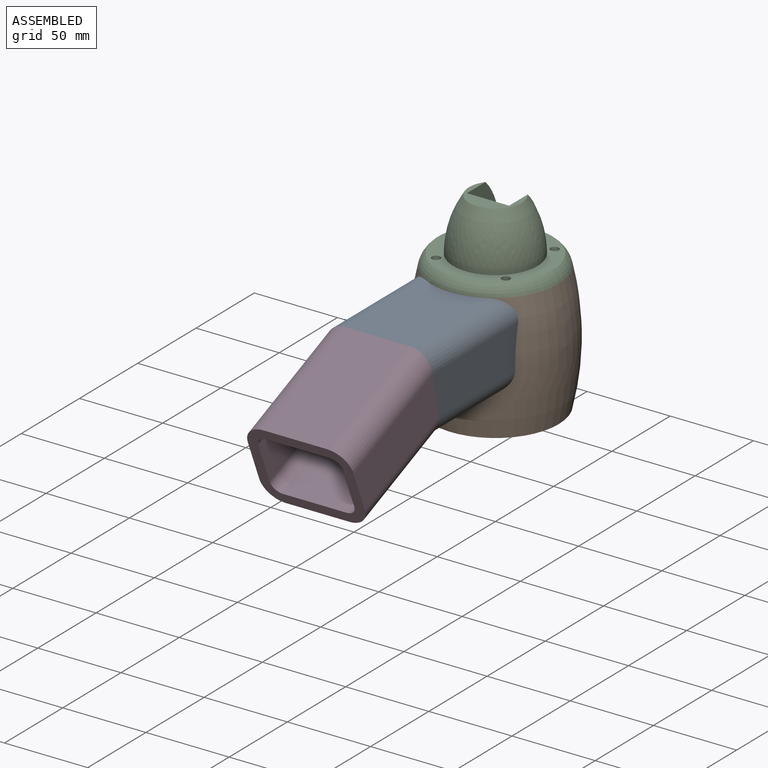
[diagram: assembled view]
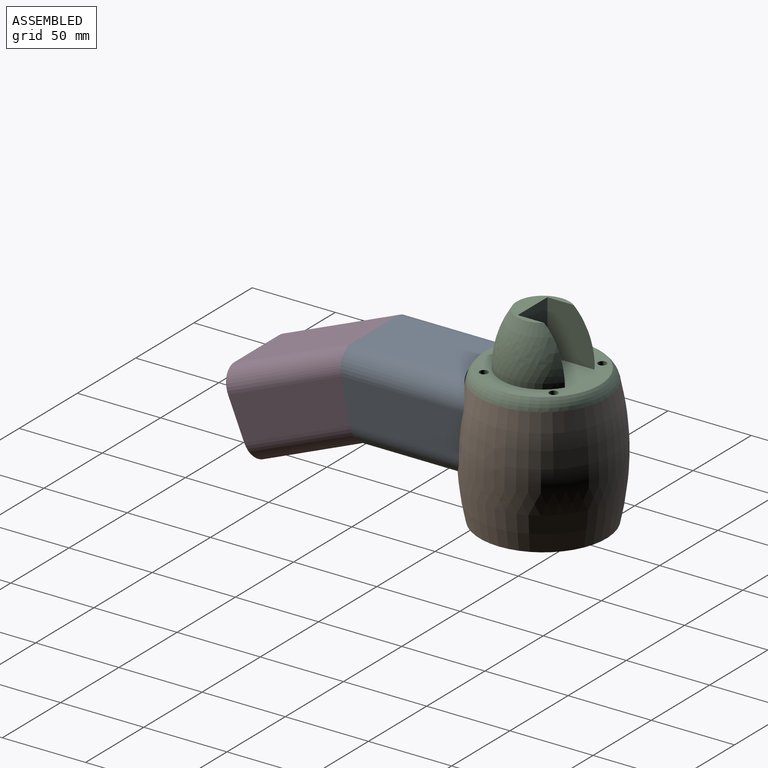
[diagram: assembled view, second angle]
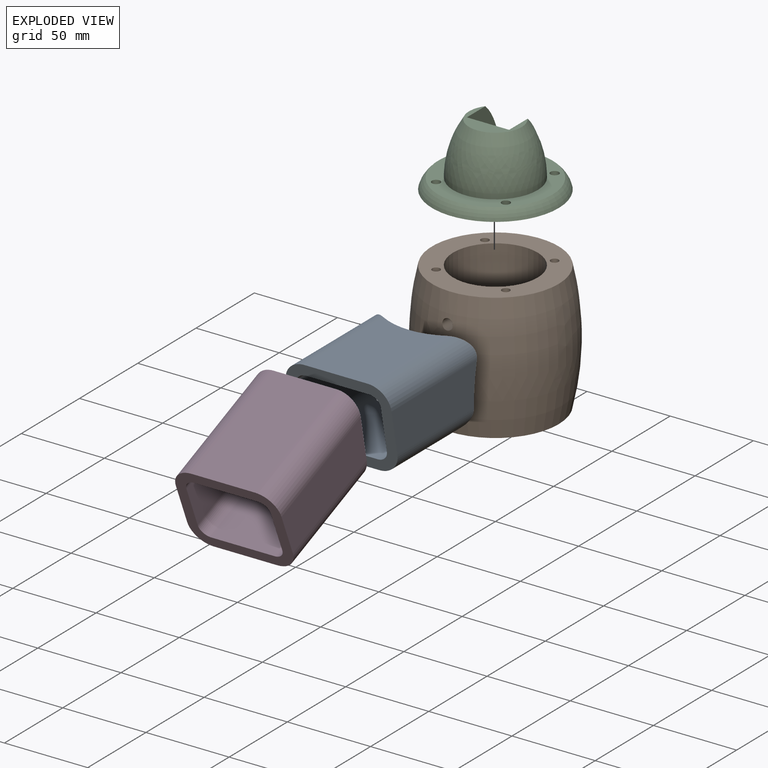
[diagram: exploded view]
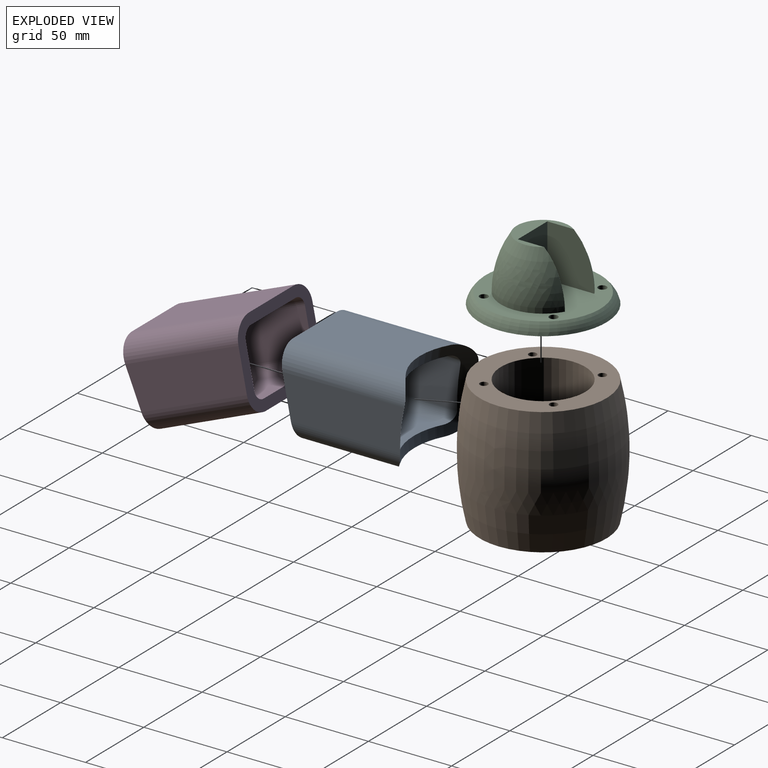
[diagram: exploded view, second angle]
ASSEMBLY  parts=4 mates=3
PART A: 18 faces, bbox 66.2x77.3x50.8 mm
  f0: revolved ~66.21x50.8mm, area 1447.8mm2, adj f2,f3,f4,f5,f6,f7,f8,f9
  f1: plane 63.5x50.8mm, normal (0,-0.98,-0.2), area 1209.7mm2, adj f2,f3,f4,f5,f6,f7,f8,f9
  f2: plane 73.26x25.41mm, normal (-1,0,0), area 1751.8mm2, adj f0,f1,f8,f9
  f3: plane 73.26x25.41mm, normal (1,0,0), area 1751.8mm2, adj f0,f1,f6,f7
  f4: plane 54.2x38.1mm, normal (0,0,-1), area 1947.2mm2, adj f0,f1,f6,f8
  f5: plane 68.02x38.1mm, normal (0,0,1), area 2462mm2, adj f0,f1,f7,f9
  f6: cylinder r=12.7mm len=65.71mm, axis (0,1,0), area 1206.4mm2, adj f0,f1,f3,f4
  f7: cylinder r=12.7mm len=76.07mm, axis (0,-1,0), area 1442.8mm2, adj f0,f1,f3,f5
  f8: cylinder r=12.7mm len=65.71mm, axis (0,-1,0), area 1206.4mm2, adj f0,f1,f2,f4
  f9: cylinder r=12.7mm len=76.07mm, axis (0,1,0), area 1442.8mm2, adj f0,f1,f2,f5
  f10: plane 66.99x25.4mm, normal (1,0,0), area 1600.9mm2, adj f0,f1,f16,f17
  f11: plane 66.99x25.4mm, normal (-1,0,0), area 1600.9mm2, adj f0,f1,f14,f15
  f12: plane 54.95x38.1mm, normal (0,0,1), area 1977.4mm2, adj f0,f1,f14,f16
  f13: plane 65.28x38.1mm, normal (0,0,-1), area 2362.8mm2, adj f0,f1,f15,f17
  f14: cylinder r=6.35mm len=59.9mm, axis (0,1,0), area 575.5mm2, adj f0,f1,f11,f12
  f15: cylinder r=6.35mm len=68.39mm, axis (0,-1,0), area 667.7mm2, adj f0,f1,f11,f13
  f16: cylinder r=6.35mm len=59.9mm, axis (0,-1,0), area 575.5mm2, adj f0,f1,f10,f12
  f17: cylinder r=6.35mm len=68.39mm, axis (0,1,0), area 667.7mm2, adj f0,f1,f10,f13
PART B: 14 faces, bbox 85.1x85.1x76.2 mm
  f0: cylinder r=25.4mm len=76.2mm, axis (0,0,1), area 12002.1mm2, adj f2,f3,f4,f5
  f1: revolved ~85.11x85.11mm, area 19682.6mm2, adj f2,f3,f4,f5
  f2: plane 76.2x76.2mm, normal (0,0,-1), area 2533.5mm2, adj f0,f1
  f3: plane 76.2x76.2mm, normal (0,0,1), area 2461.9mm2, adj f0,f1,f7,f9,f11,f13
  f4: cylinder r=3.17mm len=16.33mm, axis (0,1,0), area 314.4mm2, adj f0,f1
  f5: cylinder r=6.35mm len=17.92mm, axis (0,1,0), area 687.8mm2, adj f0,f1
  f6: cone r=0mm half-angle=59deg, axis (0,0,1), area 20.9mm2, adj f7
  f7: cylinder r=2.39mm len=25.4mm, axis (0,0,1), area 381mm2, adj f3,f6
  f8: cone r=0mm half-angle=59deg, axis (0,0,1), area 20.9mm2, adj f9
  f9: cylinder r=2.39mm len=25.4mm, axis (0,0,1), area 381mm2, adj f3,f8
  f10: cone r=0mm half-angle=59deg, axis (0,0,1), area 20.9mm2, adj f11
  f11: cylinder r=2.39mm len=25.4mm, axis (0,0,1), area 381mm2, adj f3,f10
  f12: cone r=0mm half-angle=59deg, axis (0,0,1), area 20.9mm2, adj f13
  f13: cylinder r=2.39mm len=25.4mm, axis (0,0,1), area 381mm2, adj f3,f12
PART C: 12 faces, bbox 83.2x83.2x41 mm
  f0: plane 31.75x25.4mm, normal (0,0,1), area 275.8mm2, adj f1,f5,f6,f7
  f1: revolved ~50.69x47.4mm, area 3772.6mm2, adj f0,f2,f6,f7
  f2: plane 68.82x68.82mm, normal (0,0,1), area 2390.8mm2, adj f1,f3,f5,f6,f7,f8,f9,f10
  f3: torus R=25.74mm, axis (0,0,-1), area 1711.7mm2, adj f2,f4
  f4: plane 76.2x76.2mm, normal (0,0,-1), area 4479.3mm2, adj f3,f8,f9,f10,f11
  f5: plane 31.75x25.4mm, normal (0,-1,0), area 806.5mm2, adj f0,f2,f6,f7
  f6: plane 31.76x28.35mm, normal (1,0,0), area 781mm2, adj f0,f1,f2,f5
  f7: plane 31.76x28.35mm, normal (-1,0,0), area 781mm2, adj f0,f1,f2,f5
  f8: cylinder r=2.54mm len=6.35mm, axis (0,0,1), area 101.3mm2, adj f2,f4
  f9: cylinder r=2.54mm len=6.35mm, axis (0,0,1), area 101.3mm2, adj f2,f4
  f10: cylinder r=2.54mm len=6.35mm, axis (0,0,1), area 101.3mm2, adj f2,f4
  f11: cylinder r=2.54mm len=6.35mm, axis (0,0,1), area 101.3mm2, adj f2,f4
PART D: 18 faces, bbox 63.5x76.2x50.8 mm
  f0: plane 63.5x50.8mm, normal (0,-1,0), area 1186.5mm2, adj f1,f2,f3,f4,f6,f7,f8,f9
  f1: plane 76.2x38.1mm, normal (0,0,1), area 2903.2mm2, adj f0,f5,f8,f9
  f2: plane 73.67x25.4mm, normal (1,0,0), area 1807.1mm2, adj f0,f5,f7,f9
  f3: plane 73.67x25.4mm, normal (-1,0,0), area 1807.1mm2, adj f0,f5,f6,f8
  f4: plane 66.1x38.1mm, normal (0,0,-1), area 2518.2mm2, adj f0,f5,f6,f7
  f5: plane 63.5x50.8mm, normal (0,0.98,-0.2), area 1209.7mm2, adj f1,f2,f3,f4,f6,f7,f8,f9
  f6: cylinder r=12.7mm len=68.62mm, axis (0,-1,0), area 1336.9mm2, adj f0,f3,f4,f5
  f7: cylinder r=12.7mm len=68.62mm, axis (0,1,0), area 1336.9mm2, adj f0,f2,f4,f5
  f8: cylinder r=12.7mm len=76.2mm, axis (0,1,0), area 1501.8mm2, adj f0,f1,f3,f5
  f9: cylinder r=12.7mm len=76.2mm, axis (0,-1,0), area 1501.8mm2, adj f0,f1,f2,f5
  f10: plane 74.94x38.1mm, normal (0,0,-1), area 2855.1mm2, adj f0,f5,f16,f17
  f11: plane 73.67x25.4mm, normal (-1,0,0), area 1807.1mm2, adj f0,f5,f15,f17
  f12: plane 73.67x25.4mm, normal (1,0,0), area 1807.1mm2, adj f0,f5,f14,f16
  f13: plane 67.36x38.1mm, normal (0,0,1), area 2566.4mm2, adj f0,f5,f14,f15
  f14: cylinder r=6.35mm len=68.62mm, axis (0,-1,0), area 676.4mm2, adj f0,f5,f12,f13
  f15: cylinder r=6.35mm len=68.62mm, axis (0,1,0), area 676.4mm2, adj f0,f5,f11,f13
  f16: cylinder r=6.35mm len=74.94mm, axis (0,1,0), area 742.9mm2, adj f0,f5,f10,f12
  f17: cylinder r=6.35mm len=74.94mm, axis (0,-1,0), area 742.9mm2, adj f0,f5,f10,f11
PLACE A t=(0,0,2.22)mm
PLACE B at identity
PLACE C rot(axis=(0,0,1),180deg) t=(0,0,0)mm
PLACE D rot(axis=(1,0,0),22.5deg) t=(0,20.58,46.73)mm
MATE fastened C.f3 <-> B.f0  axis (0,0,-1) through (0,0,76.2)mm
MATE fastened A.f5 <-> B.f0  axis (0,0,1) through (0,0,76.2)mm
MATE fastened A.f1 <-> D.f5  axis (0,-0.98,-0.2) through (0,-101.6,76.2)mm
